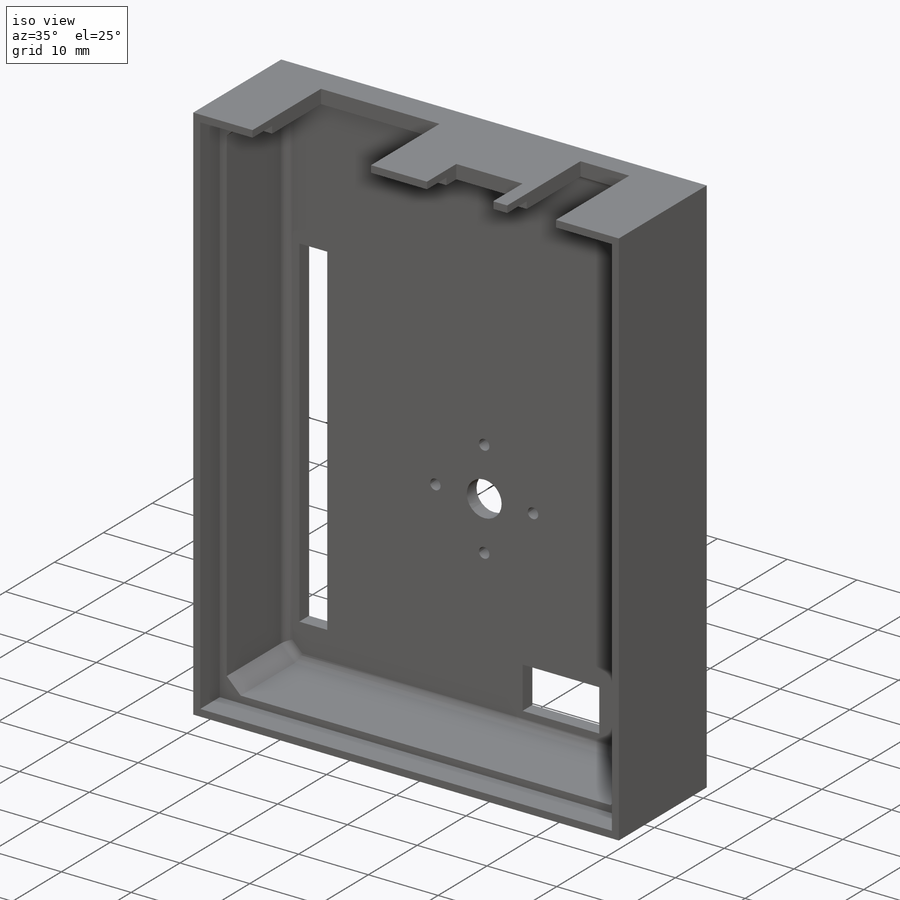
[diagram: iso view]
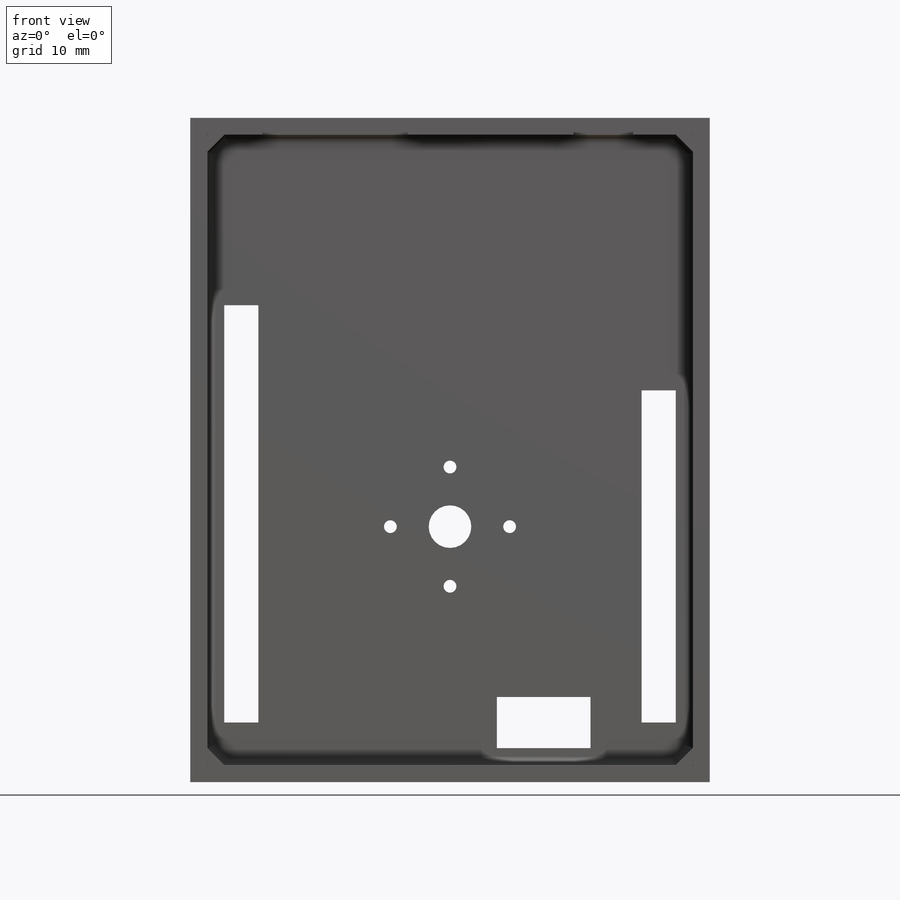
[diagram: front view]
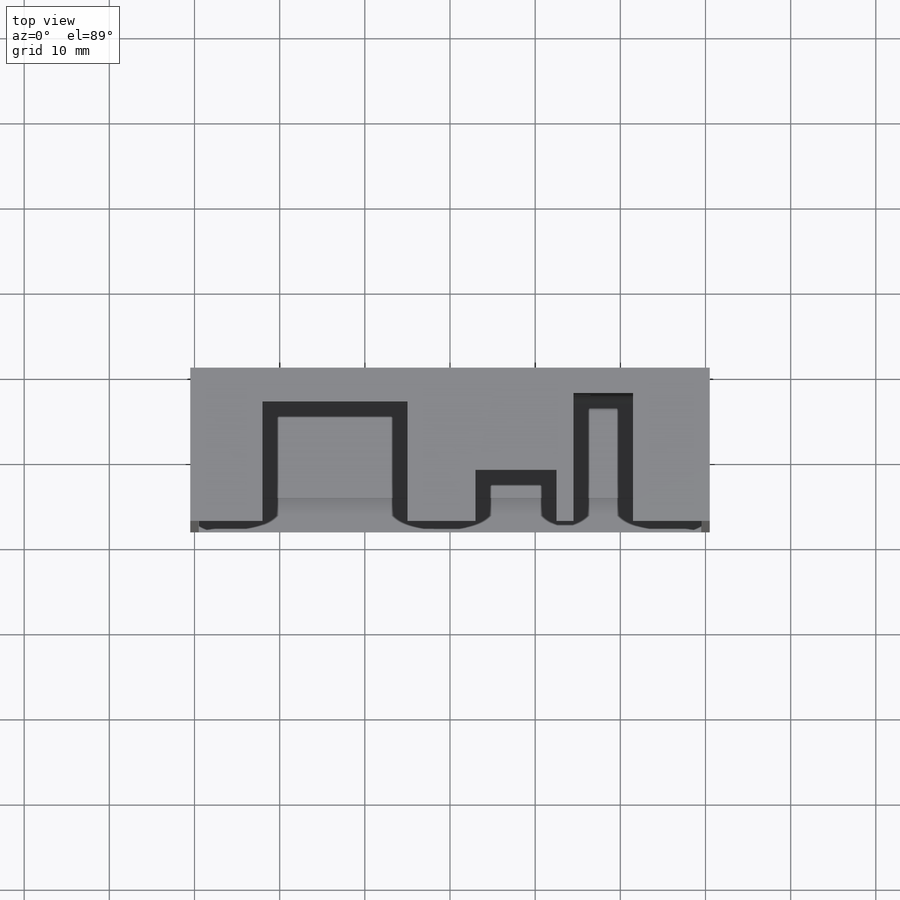
[diagram: top view]
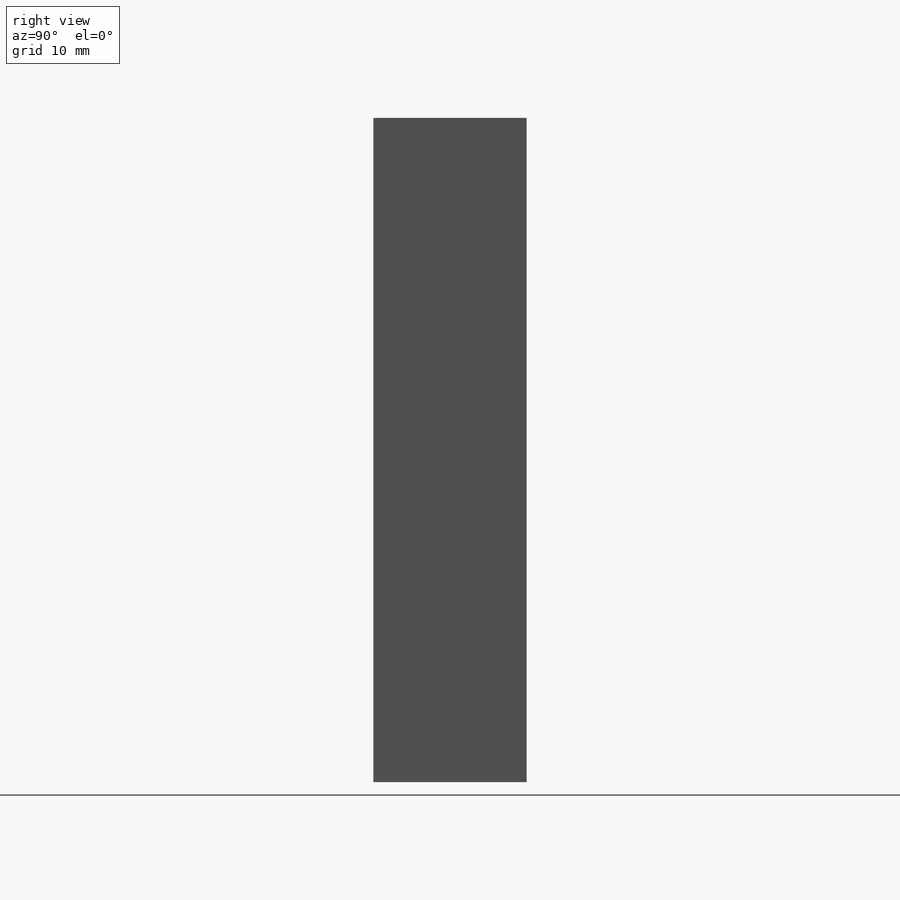
[diagram: right view]
SOLIDWORKS PART (.sldprt)
format: sldprt  version: not decoded by parser v0  size: 372,224 bytes
history: native  units: mm
features: sketch x6, plane x3, extrude x3, cut_extrude x3, material x1, chamfer x1, fillet x1 (+10 scaffold rows collapsed)
feature tree (28):
  scaffold x10  (default folders/planes/origin — collapsed)
  material  "Matériau <non spécifié>"
  plane  "Plan de face"
  plane  "Plan de dessus"
  plane  "Plan de droite"
  sketch  "Esquisse1"  dims[D1=61.0mm D2=78.0mm]
  extrude  "Boss.-Extru.1"  Depth=2mm
  sketch  "Esquisse2"  dims[D1=2.0mm D2=2.0mm D3=2.0mm D4=2.0mm]
  extrude  "Boss.-Extru.2"  Depth=12mm
  sketch  "Esquisse3"  dims[c1.D1=1.0mm c1.D2=1.0mm c1.D3=1.0mm c1.D4=1.0mm c2.D1=1.0mm c2.D2=1.0mm c2.D3=1.0mm c2.D4=1.0mm]
  extrude  "Boss.-Extru.3"  Depth=4mm
  sketch  "Esquisse7"  dims[c1.D1=7.0mm c1.D2=9.5mm c1.D3=16.0mm c1.D4=7.0mm c1.D5=7.0mm c1.D6=4.0mm c1.D7=20.0mm c1.D8=9.0mm c1.D9=9.0mm c1.D10=18.0mm c2.D1=17.0mm c2.D2=8.5mm c2.D3=14.0mm c2.D4=7.0mm c2.D5=9.0mm c2.D6=15.0mm c2.D7=9.5mm c2.D8=18.0mm c2.D9=6.0mm]
  cut_extrude  "Enlèv. mat.-Extru.2"  Depth=3mm
  sketch  "Esquisse8"  dims[c1.D1=4.0mm c1.D2=4.0mm c1.D3=39.0mm c1.D4=49.0mm c1.D5=7.0mm c1.D6=4.0mm c1.D7=4.0mm c1.D8=6.0mm c1.D9=11.0mm c1.D10=14.0mm c1.D11=4.0mm c2.D10=14.0mm]
  cut_extrude  "Enlèv. mat.-Extru.3"  [1 undecoded]
  chamfer  "Chanfrein1"  Distance=2mm Angle=45deg
  sketch  "Esquisse9"  dims[D1=5.0mm D3=1.5mm D2=30.0mm D4=7.0mm D5=7.0mm D6=7.0mm D7=7.0mm]
  cut_extrude  "Enlèv. mat.-Extru.4"  [1 undecoded]
  fillet  "Congé1"  Radius=1mm
decode coverage: 12 of 14 modeling features carry decoded parameters
note: 2 parameter values undecoded
note: suppression state not decoded; provenance and decode notes live in map.json
